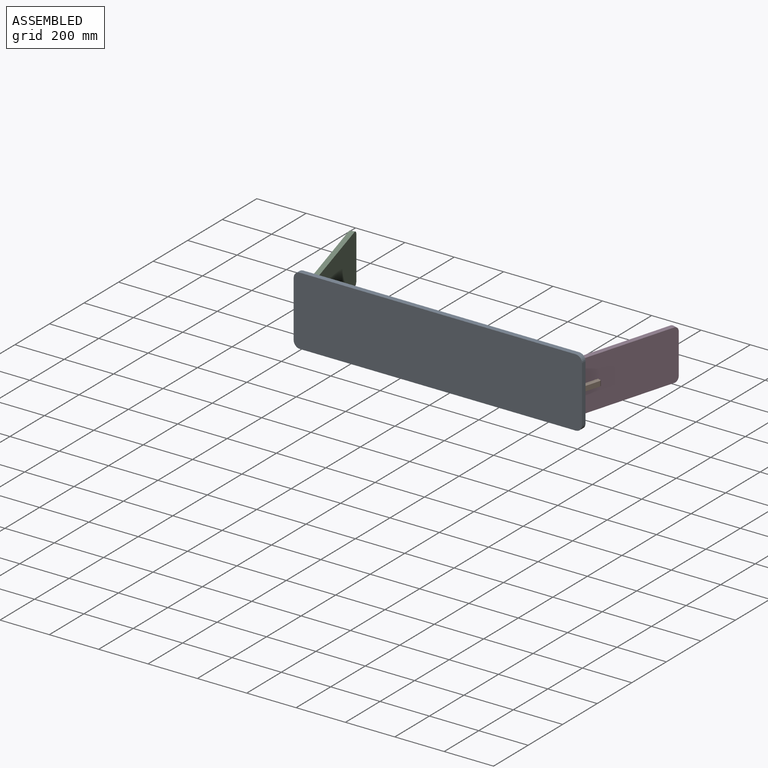
[diagram: assembled view]
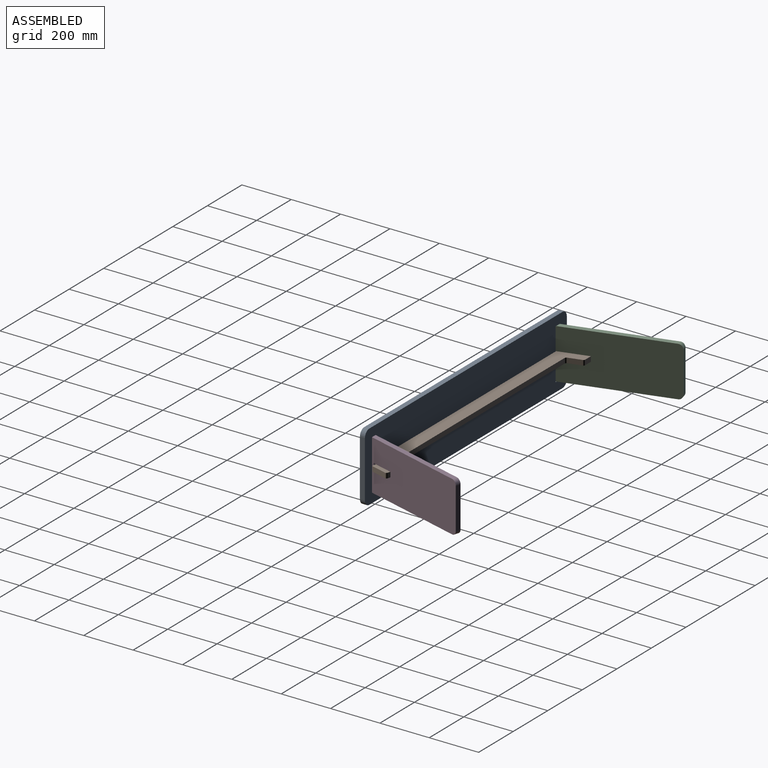
[diagram: assembled view, second angle]
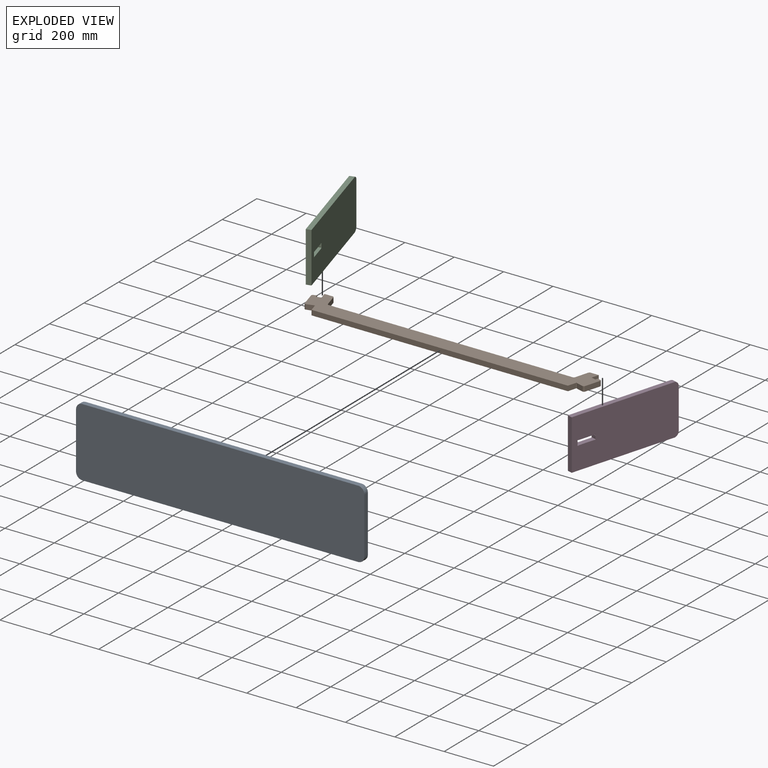
[diagram: exploded view]
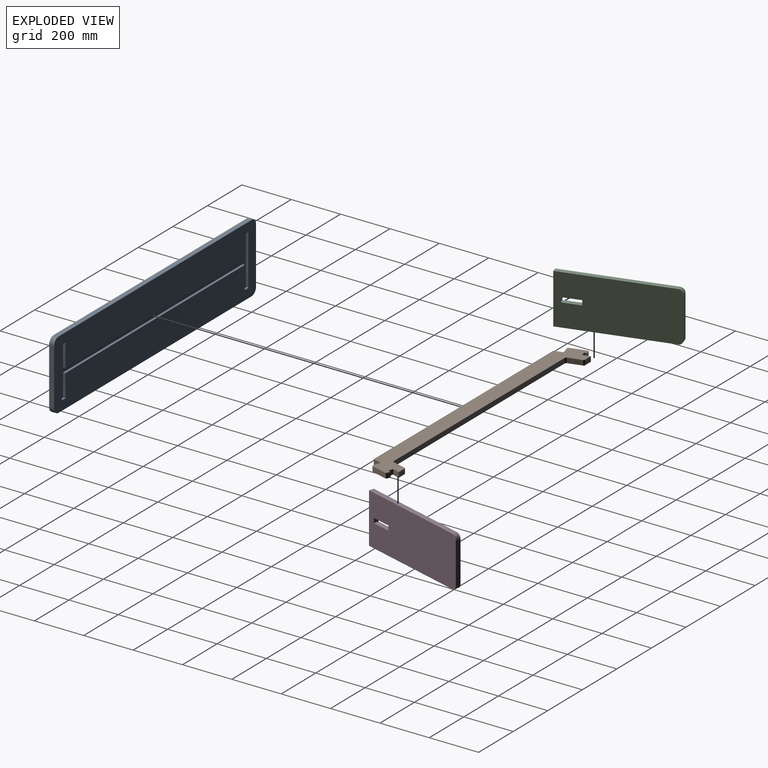
[diagram: exploded view, second angle]
ASSEMBLY  parts=4 mates=3
PART A: 31 faces, bbox 1168.4x279.4x20.3 mm
  f0: plane 11.34x9.53mm, normal (0,-1,0), area 108mm2, adj f19,f22,f29,f30
  f1: plane 194.22x9.53mm, normal (-1,0,0), area 1849.9mm2, adj f19,f22,f28,f30
  f2: plane 87.46x9.53mm, normal (1,0,0), area 833mm2, adj f19,f21,f22,f29
  f3: plane 11.34x9.53mm, normal (0,1,0), area 108mm2, adj f19,f22,f27,f28
  f4: plane 87.46x9.53mm, normal (1,0,0), area 833mm2, adj f19,f20,f22,f27
  f5: plane 11.34x9.53mm, normal (0,-1,0), area 108mm2, adj f19,f22,f25,f26
  f6: plane 87.46x9.53mm, normal (-1,0,0), area 833mm2, adj f19,f21,f22,f26
  f7: plane 194.22x9.53mm, normal (1,0,0), area 1849.9mm2, adj f19,f22,f23,f25
  f8: plane 11.34x9.53mm, normal (0,1,0), area 108mm2, adj f19,f22,f23,f24
  f9: plane 87.46x9.53mm, normal (-1,0,0), area 833mm2, adj f19,f20,f22,f24
  f10: plane 1117.6x20.32mm, normal (0,1,0), area 22709.6mm2, adj f11,f17,f18,f19
  f11: cylinder r=25.4mm len=25.4mm, axis (0,0,-1), area 810.7mm2, adj f10,f12,f18,f19
  f12: plane 228.6x20.32mm, normal (-1,0,0), area 4645.2mm2, adj f11,f13,f18,f19
  f13: cylinder r=25.4mm len=25.4mm, axis (0,0,-1), area 810.7mm2, adj f12,f14,f18,f19
  f14: plane 1117.6x20.32mm, normal (0,-1,0), area 22709.6mm2, adj f13,f15,f18,f19
  f15: cylinder r=25.4mm len=25.4mm, axis (0,0,-1), area 810.7mm2, adj f14,f16,f18,f19
  f16: plane 228.6x20.32mm, normal (1,0,0), area 4645.2mm2, adj f15,f17,f18,f19
  f17: cylinder r=25.4mm len=25.4mm, axis (0,0,-1), area 810.7mm2, adj f10,f16,f18,f19
  f18: plane 1168.4x279.4mm, normal (0,0,1), area 325897.1mm2, adj f10,f11,f12,f13,f14,f15,f16,f17
  f19: plane 1168.4x279.4mm, normal (0,0,-1), area 297538.9mm2, adj f0,f1,f2,f3,f4,f5,f6,f7
  f20: plane 1038.86x9.53mm, normal (0,1,0), area 9895.1mm2, adj f4,f9,f19,f22
  f21: plane 1038.86x9.53mm, normal (0,-1,0), area 9895.1mm2, adj f2,f6,f19,f22
  f22: plane 1081.36x205.06mm, normal (0,0,-1), area 28358.2mm2, adj f0,f1,f2,f3,f4,f5,f6,f7
  f23: cylinder r=3.17mm len=9.53mm, axis (0,0,1), area 95mm2, adj f7,f8,f19,f22
  f24: cylinder r=3.17mm len=9.53mm, axis (0,0,1), area 95mm2, adj f8,f9,f19,f22
  f25: cylinder r=3.17mm len=9.53mm, axis (0,0,1), area 95mm2, adj f5,f7,f19,f22
  f26: cylinder r=3.17mm len=9.53mm, axis (0,0,1), area 95mm2, adj f5,f6,f19,f22
  f27: cylinder r=3.17mm len=9.53mm, axis (0,0,1), area 95mm2, adj f3,f4,f19,f22
  f28: cylinder r=3.17mm len=9.53mm, axis (0,0,1), area 95mm2, adj f1,f3,f19,f22
  f29: cylinder r=3.17mm len=9.53mm, axis (0,0,1), area 95mm2, adj f0,f2,f19,f22
  f30: cylinder r=3.17mm len=9.53mm, axis (0,0,1), area 95mm2, adj f0,f1,f19,f22
PART B: 48 faces, bbox 1171.5x127x20.3 mm
  f0: plane 20.32x18.56mm, normal (0.28,0.96,0), area 221.2mm2, adj f1,f2,f28,f29,f42,f43,f45,f46
  f1: plane 20.32x10.5mm, normal (-0.96,0.28,0), area 136.4mm2, adj f0,f16,f28,f29,f46,f47
  f2: plane 29.32x20.32mm, normal (0.96,-0.28,0), area 534.1mm2, adj f0,f17,f28,f29,f43,f44
  f3: plane 34.92x20.32mm, normal (0.96,-0.28,0), area 652.5mm2, adj f4,f12,f28,f29,f39,f40
  f4: plane 30.77x20.32mm, normal (-0.28,-0.96,0), area 564.8mm2, adj f3,f13,f28,f29,f40,f41
  f5: plane 30.77x20.32mm, normal (0.28,-0.96,0), area 564.8mm2, adj f6,f11,f28,f29,f36,f37
  f6: plane 34.92x20.32mm, normal (-0.96,-0.28,0), area 652.5mm2, adj f5,f12,f28,f29,f37,f38
  f7: plane 20.32x18.56mm, normal (-0.28,0.96,0), area 221.2mm2, adj f8,f9,f28,f29,f30,f31,f33,f34
  f8: plane 29.32x20.32mm, normal (-0.96,-0.28,0), area 534.1mm2, adj f7,f25,f28,f29,f34,f35
  f9: plane 20.32x10.5mm, normal (0.96,0.28,0), area 136.4mm2, adj f7,f26,f28,f29,f31,f32
  f10: plane 61.05x20.32mm, normal (-0.96,-0.28,0), area 1290.3mm2, adj f11,f27,f28,f29
  f11: cylinder r=6.35mm len=20.32mm, axis (0,0,-1), area 202.7mm2, adj f5,f10,f28,f29
  f12: plane 1038.86x20.32mm, normal (0,-1,0), area 21109.6mm2, adj f3,f6,f28,f29
  f13: cylinder r=6.35mm len=20.32mm, axis (0,0,-1), area 202.7mm2, adj f4,f14,f28,f29
  f14: plane 61.05x20.32mm, normal (0.96,-0.28,0), area 1290.3mm2, adj f13,f15,f28,f29
  f15: cylinder r=6.35mm len=20.32mm, axis (0,0,-1), area 202.7mm2, adj f14,f16,f28,f29
  f16: plane 20.32x12.21mm, normal (0.28,0.96,0), area 258.1mm2, adj f1,f15,f28,f29
  f17: plane 33.31x20.32mm, normal (0,1,0), area 676.9mm2, adj f2,f18,f28,f29
  f18: cylinder r=6.35mm len=20.32mm, axis (0,0,-1), area 166.7mm2, adj f17,f19,f28,f29
  f19: plane 54.29x20.32mm, normal (-0.96,0.28,0), area 1147.5mm2, adj f18,f20,f28,f29
  f20: cylinder r=6.35mm len=20.32mm, axis (0,0,-1), area 166.7mm2, adj f19,f21,f28,f29
  f21: plane 989.41x20.32mm, normal (0,1,0), area 20104.9mm2, adj f20,f22,f28,f29
  f22: cylinder r=6.35mm len=20.32mm, axis (0,0,-1), area 166.7mm2, adj f21,f23,f28,f29
  f23: plane 54.29x20.32mm, normal (0.96,0.28,0), area 1147.5mm2, adj f22,f24,f28,f29
  f24: cylinder r=6.35mm len=20.32mm, axis (0,0,-1), area 166.7mm2, adj f23,f25,f28,f29
  f25: plane 33.31x20.32mm, normal (0,1,0), area 676.9mm2, adj f8,f24,f28,f29
  f26: plane 20.32x12.21mm, normal (-0.28,0.96,0), area 258.1mm2, adj f9,f27,f28,f29
  f27: cylinder r=6.35mm len=20.32mm, axis (0,0,-1), area 202.7mm2, adj f10,f26,f28,f29
  f28: plane 1171.5x127mm, normal (0,0,1), area 77348.7mm2, adj f0,f1,f2,f3,f4,f5,f6,f7
  f29: plane 1171.5x127mm, normal (0,0,-1), area 77314.2mm2, adj f0,f1,f2,f3,f4,f5,f6,f7
  f30: plane 4.32x1.63mm, normal (0,0,-1), area 2.9mm2, adj f7,f31
  f31: cylinder r=3.17mm len=19.05mm, axis (0,0,1), area 190mm2, adj f7,f9,f29,f30,f32
  f32: plane 4.32x1.63mm, normal (0,0,-1), area 2.9mm2, adj f9,f31
  f33: plane 4.32x1.63mm, normal (0,0,-1), area 2.9mm2, adj f7,f34
  f34: cylinder r=3.17mm len=19.05mm, axis (0,0,1), area 190mm2, adj f7,f8,f29,f33,f35
  f35: plane 4.32x1.63mm, normal (0,0,-1), area 2.9mm2, adj f8,f34
  f36: plane 4.32x1.63mm, normal (0,0,-1), area 2.9mm2, adj f5,f37
  f37: cylinder r=3.17mm len=19.05mm, axis (0,0,1), area 190mm2, adj f5,f6,f29,f36,f38
  f38: plane 4.32x1.63mm, normal (0,0,-1), area 2.9mm2, adj f6,f37
  f39: plane 4.32x1.63mm, normal (0,0,-1), area 2.9mm2, adj f3,f40
  f40: cylinder r=3.17mm len=19.05mm, axis (0,0,1), area 190mm2, adj f3,f4,f29,f39,f41
  f41: plane 4.32x1.63mm, normal (0,0,-1), area 2.9mm2, adj f4,f40
  f42: plane 4.32x1.63mm, normal (0,0,-1), area 2.9mm2, adj f0,f43
  f43: cylinder r=3.17mm len=19.05mm, axis (0,0,1), area 190mm2, adj f0,f2,f29,f42,f44
  f44: plane 4.32x1.63mm, normal (0,0,-1), area 2.9mm2, adj f2,f43
  f45: plane 4.32x1.63mm, normal (0,0,-1), area 2.9mm2, adj f0,f46
  f46: cylinder r=3.17mm len=19.05mm, axis (0,0,1), area 190mm2, adj f0,f1,f29,f45,f47
  f47: plane 4.32x1.63mm, normal (0,0,-1), area 2.9mm2, adj f1,f46
PART C: 24 faces, bbox 457.2x203.2x20.3 mm
  f0: plane 457.2x203.2mm, normal (0,0,1), area 91253.3mm2, adj f1,f2,f3,f4,f5,f6,f7,f8
  f1: plane 76.2x20.32mm, normal (0,1,0), area 1377.3mm2, adj f0,f2,f3,f11,f18,f20,f21,f22
  f2: plane 20.32x19.3mm, normal (1,0,0), area 221.2mm2, adj f0,f1,f4,f11,f13,f14,f21,f23
  f3: plane 20.32x19.3mm, normal (-1,0,0), area 221.2mm2, adj f0,f1,f4,f11,f15,f17,f18,f19
  f4: plane 76.2x20.32mm, normal (0,-1,0), area 1377.3mm2, adj f0,f2,f3,f11,f12,f13,f15,f16
  f5: plane 203.2x20.32mm, normal (-1,0,0), area 4129mm2, adj f0,f6,f10,f11
  f6: plane 438.15x20.32mm, normal (0,-1,0), area 8903.2mm2, adj f0,f5,f7,f11
  f7: cylinder r=19.05mm len=20.32mm, axis (0,0,-1), area 608mm2, adj f0,f6,f8,f11
  f8: plane 165.1x20.32mm, normal (1,0,0), area 3354.8mm2, adj f0,f7,f9,f11
  f9: cylinder r=19.05mm len=20.32mm, axis (0,0,-1), area 608mm2, adj f0,f8,f10,f11
  f10: plane 438.15x20.32mm, normal (0,1,0), area 8903.2mm2, adj f0,f5,f9,f11
  f11: plane 457.2x203.2mm, normal (0,0,-1), area 91276.3mm2, adj f1,f2,f3,f4,f5,f6,f7,f8
  f12: plane 4.49x0.93mm, normal (0,0,1), area 2.9mm2, adj f4,f13
  f13: cylinder r=3.17mm len=19.05mm, axis (0,0,-1), area 190mm2, adj f0,f2,f4,f12,f14
  f14: plane 4.49x0.93mm, normal (0,0,1), area 2.9mm2, adj f2,f13
  f15: cylinder r=3.17mm len=19.05mm, axis (0,0,-1), area 190mm2, adj f0,f3,f4,f16,f17
  f16: plane 4.49x0.93mm, normal (0,0,1), area 2.9mm2, adj f4,f15
  f17: plane 4.49x0.93mm, normal (0,0,1), area 2.9mm2, adj f3,f15
  f18: cylinder r=3.17mm len=19.05mm, axis (0,0,-1), area 190mm2, adj f0,f1,f3,f19,f20
  f19: plane 4.49x0.93mm, normal (0,0,1), area 2.9mm2, adj f3,f18
  f20: plane 4.49x0.93mm, normal (0,0,1), area 2.9mm2, adj f1,f18
  f21: cylinder r=3.17mm len=19.05mm, axis (0,0,-1), area 190mm2, adj f0,f1,f2,f22,f23
  f22: plane 4.49x0.93mm, normal (0,0,1), area 2.9mm2, adj f1,f21
  f23: plane 4.49x0.93mm, normal (0,0,1), area 2.9mm2, adj f2,f21
PART D: 24 faces, bbox 457.2x203.2x20.3 mm
  f0: plane 457.2x203.2mm, normal (0,0,1), area 91253.3mm2, adj f1,f2,f3,f4,f5,f6,f7,f8
  f1: plane 76.2x20.32mm, normal (0,1,0), area 1377.3mm2, adj f0,f2,f3,f11,f18,f20,f21,f22
  f2: plane 20.32x19.3mm, normal (1,0,0), area 221.2mm2, adj f0,f1,f4,f11,f13,f14,f21,f23
  f3: plane 20.32x19.3mm, normal (-1,0,0), area 221.2mm2, adj f0,f1,f4,f11,f15,f17,f18,f19
  f4: plane 76.2x20.32mm, normal (0,-1,0), area 1377.3mm2, adj f0,f2,f3,f11,f12,f13,f15,f16
  f5: plane 203.2x20.32mm, normal (-1,0,0), area 4129mm2, adj f0,f6,f10,f11
  f6: plane 438.15x20.32mm, normal (0,-1,0), area 8903.2mm2, adj f0,f5,f7,f11
  f7: cylinder r=19.05mm len=20.32mm, axis (0,0,-1), area 608mm2, adj f0,f6,f8,f11
  f8: plane 165.1x20.32mm, normal (1,0,0), area 3354.8mm2, adj f0,f7,f9,f11
  f9: cylinder r=19.05mm len=20.32mm, axis (0,0,-1), area 608mm2, adj f0,f8,f10,f11
  f10: plane 438.15x20.32mm, normal (0,1,0), area 8903.2mm2, adj f0,f5,f9,f11
  f11: plane 457.2x203.2mm, normal (0,0,-1), area 91276.3mm2, adj f1,f2,f3,f4,f5,f6,f7,f8
  f12: plane 4.49x0.93mm, normal (0,0,1), area 2.9mm2, adj f4,f13
  f13: cylinder r=3.17mm len=19.05mm, axis (0,0,-1), area 190mm2, adj f0,f2,f4,f12,f14
  f14: plane 4.49x0.93mm, normal (0,0,1), area 2.9mm2, adj f2,f13
  f15: cylinder r=3.17mm len=19.05mm, axis (0,0,-1), area 190mm2, adj f0,f3,f4,f16,f17
  f16: plane 4.49x0.93mm, normal (0,0,1), area 2.9mm2, adj f4,f15
  f17: plane 4.49x0.93mm, normal (0,0,1), area 2.9mm2, adj f3,f15
  f18: cylinder r=3.17mm len=19.05mm, axis (0,0,-1), area 190mm2, adj f0,f1,f3,f19,f20
  f19: plane 4.49x0.93mm, normal (0,0,1), area 2.9mm2, adj f3,f18
  f20: plane 4.49x0.93mm, normal (0,0,1), area 2.9mm2, adj f1,f18
  f21: cylinder r=3.17mm len=19.05mm, axis (0,0,-1), area 190mm2, adj f0,f1,f2,f22,f23
  f22: plane 4.49x0.93mm, normal (0,0,1), area 2.9mm2, adj f1,f21
  f23: plane 4.49x0.93mm, normal (0,0,1), area 2.9mm2, adj f2,f21
PLACE A rot(axis=(1,0,0),90deg) t=(-124.51,613.35,168.77)mm
PLACE B t=(-72.79,-343.98,298.31)mm
PLACE C rot(axis=(-0.47,-0.62,0.62),129.6deg) t=(-681.7,1097.07,804.16)mm
PLACE D rot(axis=(0.68,0.52,0.52),111.3deg) t=(507.99,637.96,-186.24)mm
MATE fastened D.f3 <-> B.f0  axis (-0.28,-0.96,0) through (535.47,698.85,308.96)mm
MATE fastened C.f3 <-> B.f7  axis (0.28,-0.96,0) through (-577.84,698.85,308.96)mm
MATE fastened A.f22 <-> B.f12  axis (0,1,0) through (-21.19,603.83,308.47)mm
